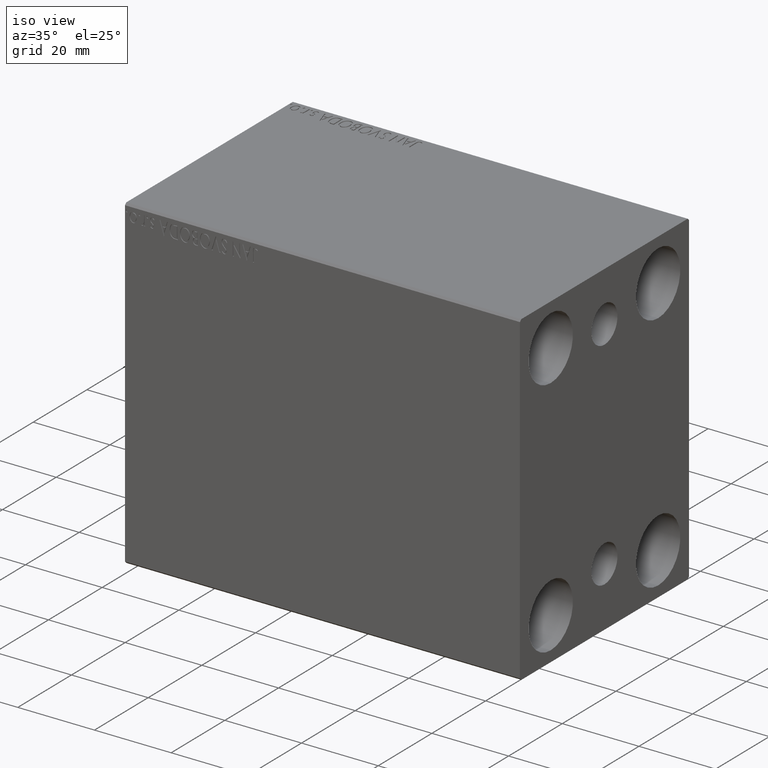
[diagram: clean part render]
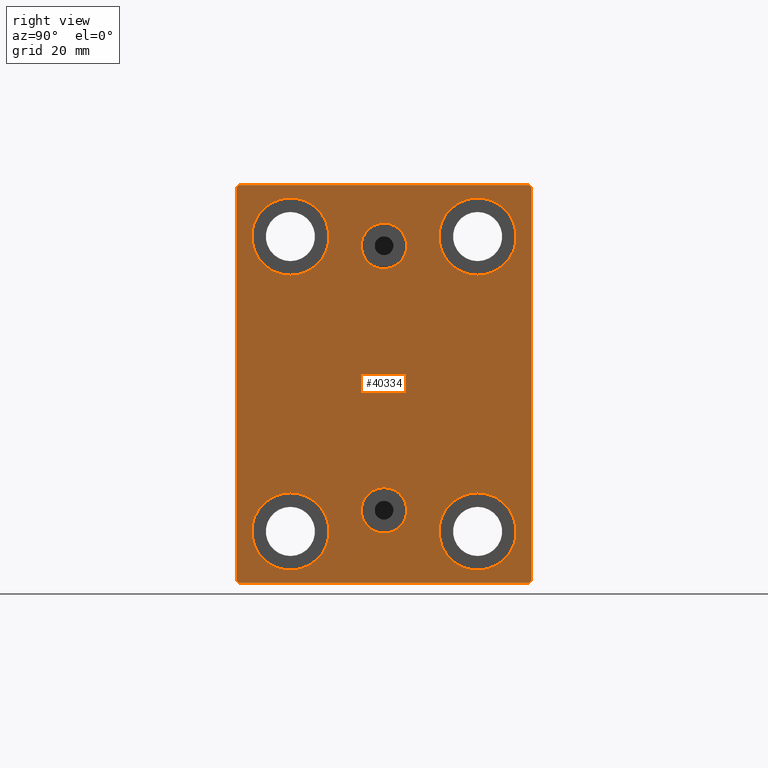
[diagram: tour spotlight — one face highlighted and labeled with its STEP entity id]
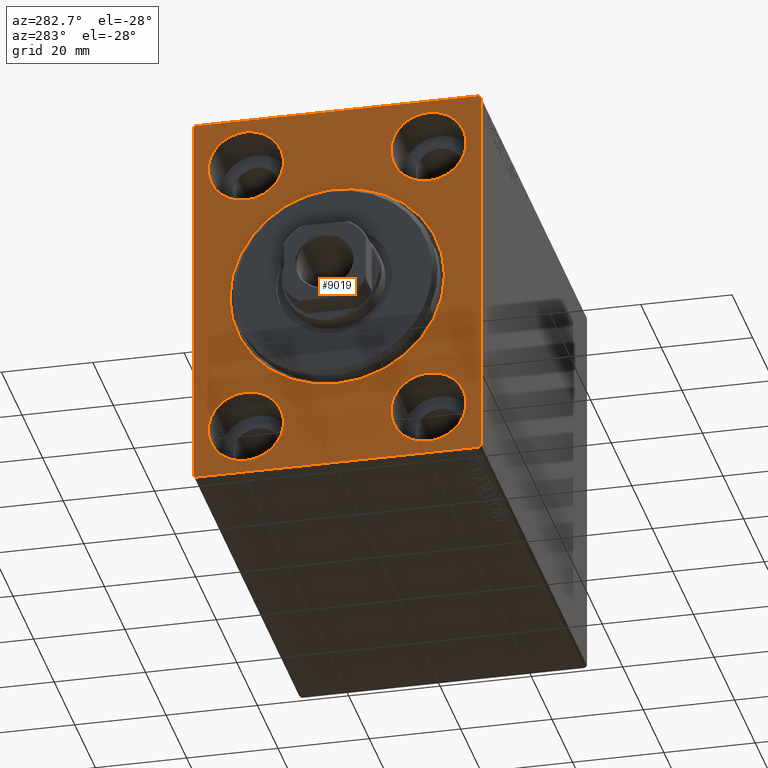
[diagram: tour spotlight — one face highlighted and labeled with its STEP entity id]
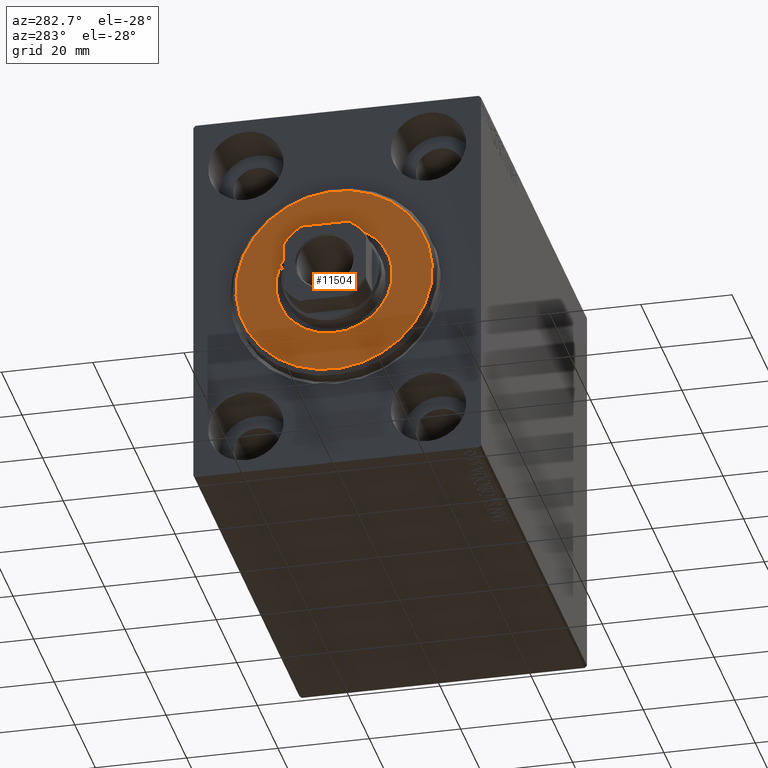
[diagram: tour spotlight — one face highlighted and labeled with its STEP entity id]
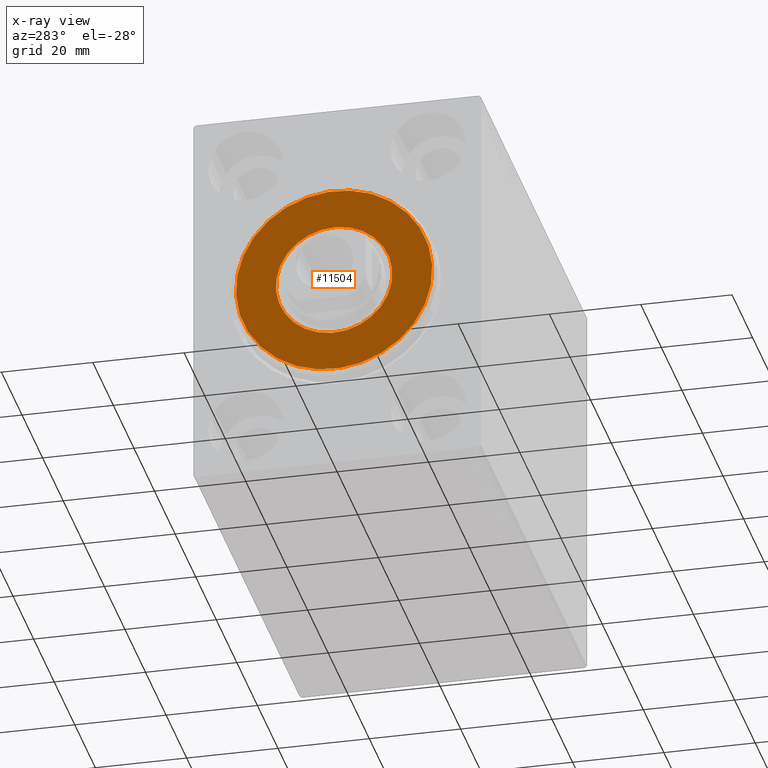
[diagram: x-ray of the same camera — body ghosted, this tour face saturated]
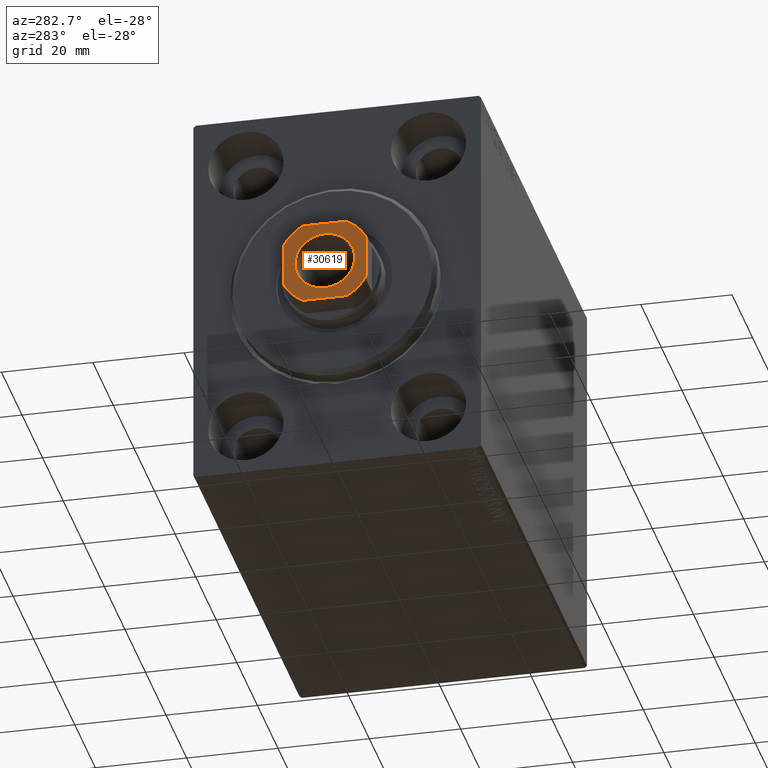
[diagram: tour spotlight — one face highlighted and labeled with its STEP entity id]
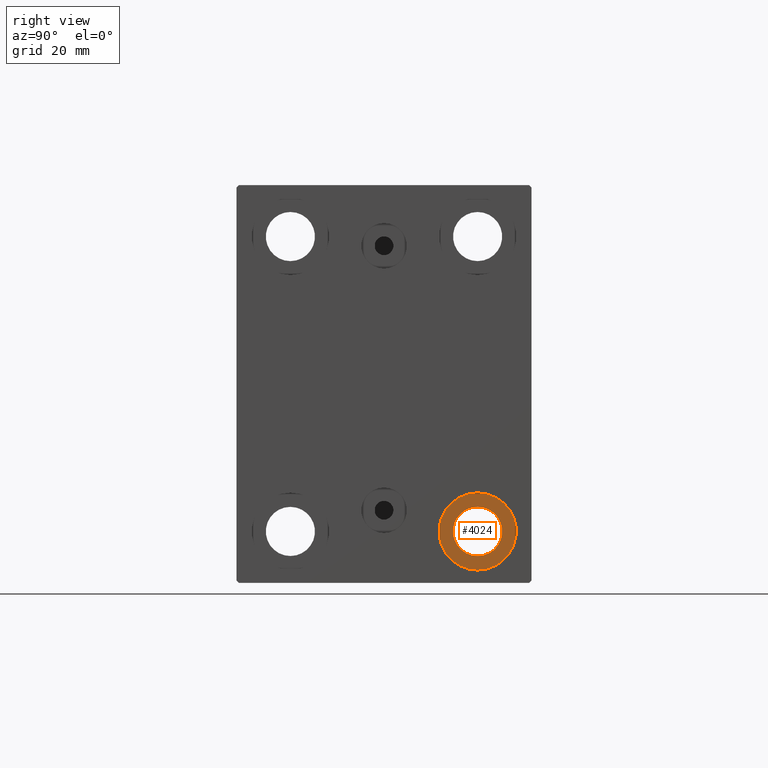
[diagram: tour spotlight — one face highlighted and labeled with its STEP entity id]
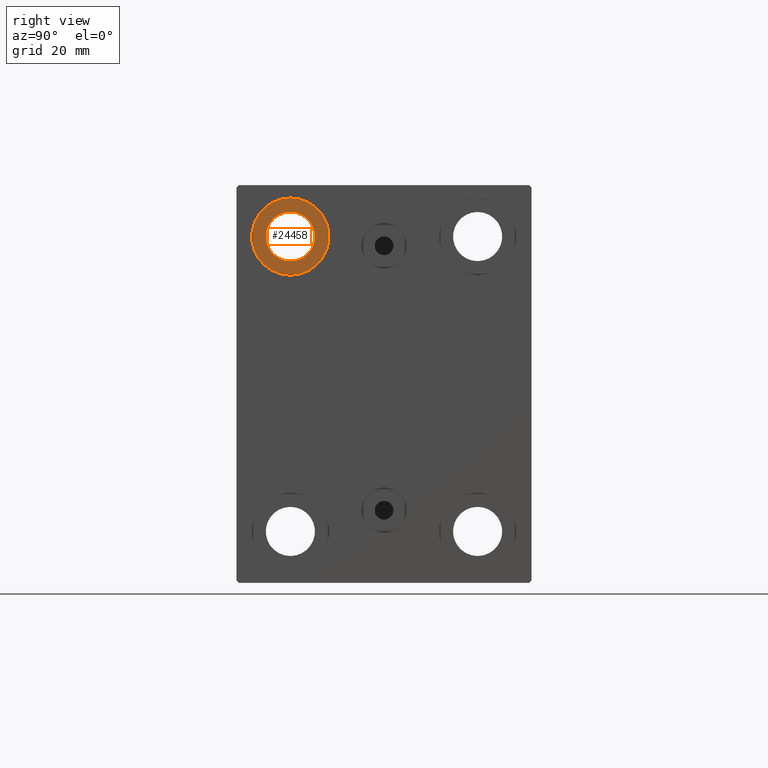
[diagram: tour spotlight — one face highlighted and labeled with its STEP entity id]
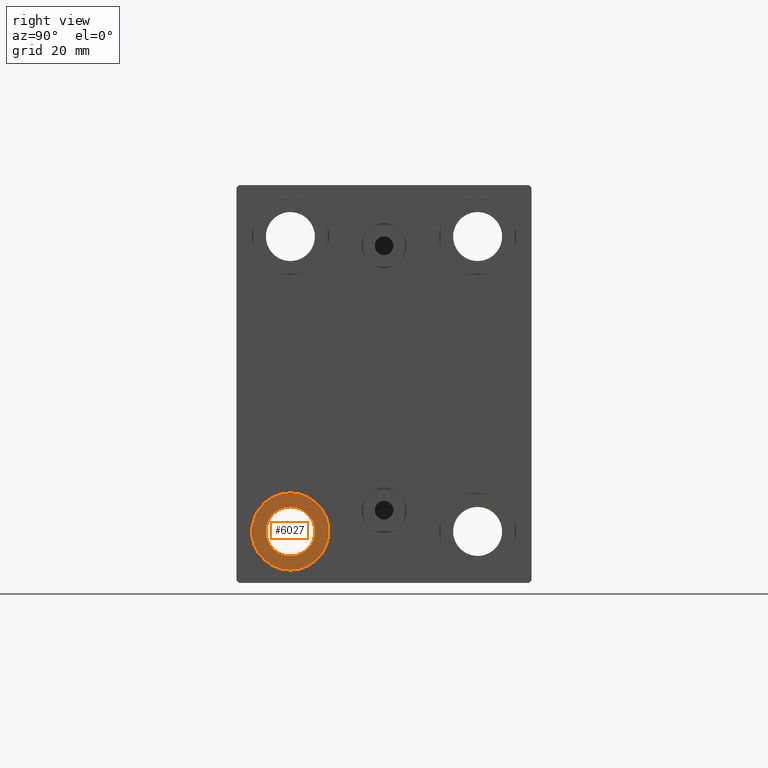
[diagram: tour spotlight — one face highlighted and labeled with its STEP entity id]
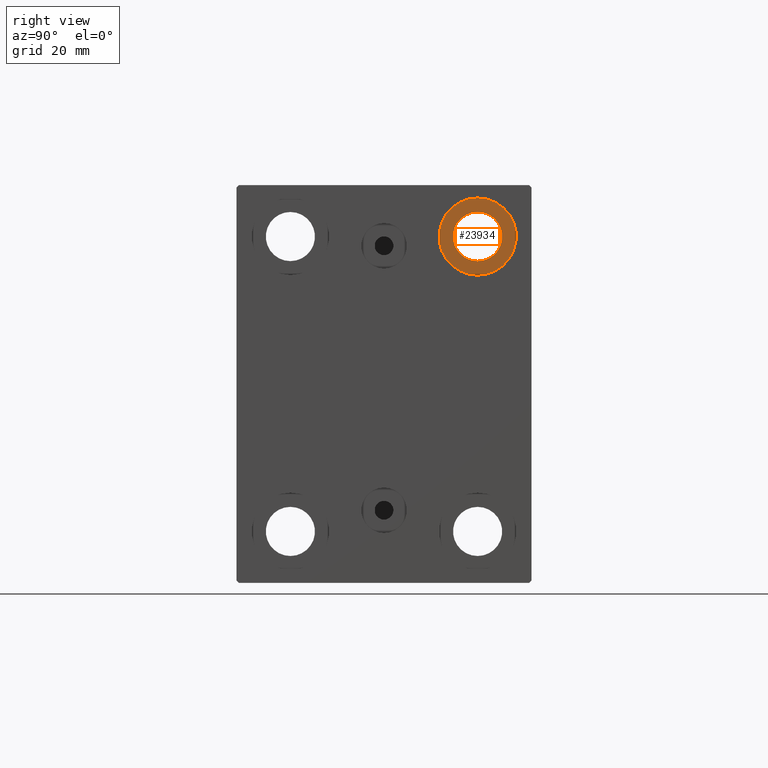
[diagram: tour spotlight — one face highlighted and labeled with its STEP entity id]
A machine part: a face-by-face anatomy tour. The part has 858 B-rep faces; the first image is the clean iso view, then the 8 largest visible faces are spotlighted one at a time (largest first), each with its STEP entity span.

Face 1 — right view, entity #40334. In plain terms, the highlighted planar face has unit normal (1, 0, 0).
Definition (entity closure, byte-faithful):
#128 = AXIS2_PLACEMENT_3D ( 'NONE', #21865, #35574, #18784 ) ;
#163 = CIRCLE ( 'NONE', #25560, 8.250000000000000000 ) ;
#246 = DIRECTION ( 'NONE',  ( -0.000000000000000000, 0.7071067811865474617, 0.7071067811865474617 ) ) ;
#266 = DIRECTION ( 'NONE',  ( -1.000000000000000000, -0.000000000000000000, -0.000000000000000000 ) ) ;
#373 = CARTESIAN_POINT ( 'NONE',  ( 103.0000000000000000, 0.000000000000000000, 0.000000000000000000 ) ) ;
#532 = AXIS2_PLACEMENT_3D ( 'NONE', #6628, #16793, #19462 ) ;
#555 = CARTESIAN_POINT ( 'NONE',  ( 103.0000000000000000, -31.50000000000000000, -42.50000000000000711 ) ) ;
#624 = EDGE_LOOP ( 'NONE', ( #29188, #14013 ) ) ;
#699 = DIRECTION ( 'NONE',  ( -1.000000000000000000, -0.000000000000000000, -0.000000000000000000 ) ) ;
#930 = CARTESIAN_POINT ( 'NONE',  ( 103.0000000000000000, 36.74999999999999289, 36.74999999999999289 ) ) ;
#1200 = CARTESIAN_POINT ( 'NONE',  ( 103.0000000000000000, -36.74999999999998579, 36.74999999999998579 ) ) ;
#1218 = VERTEX_POINT ( 'NONE', #34684 ) ;
#1365 = DIRECTION ( 'NONE',  ( -0.000000000000000000, 0.7071067811865474617, -0.7071067811865474617 ) ) ;
#1875 = EDGE_CURVE ( 'NONE', #17094, #26850, #31874, .T. ) ;
#1946 = DIRECTION ( 'NONE',  ( -1.000000000000000000, -0.000000000000000000, -0.000000000000000000 ) ) ;
#2359 = DIRECTION ( 'NONE',  ( 0.000000000000000000, 0.000000000000000000, 1.000000000000000000 ) ) ;
#2840 = EDGE_CURVE ( 'NONE', #1218, #8318, #21535, .T. ) ;
#2922 = EDGE_LOOP ( 'NONE', ( #8895, #22804 ) ) ;
#3085 = DIRECTION ( 'NONE',  ( 0.000000000000000000, 0.000000000000000000, 1.000000000000000000 ) ) ;
#3283 = EDGE_CURVE ( 'NONE', #8318, #17094, #18623, .T. ) ;
#3564 = LINE ( 'NONE', #20803, #6476 ) ;
#3578 = CIRCLE ( 'NONE', #28272, 8.250000000000000000 ) ;
#3584 = CARTESIAN_POINT ( 'NONE',  ( 103.0000000000000000, 19.99999999999999645, -31.49999999999999289 ) ) ;
#3854 = VECTOR ( 'NONE', #34576, 1000.000000000000114 ) ;
#4018 = VERTEX_POINT ( 'NONE', #43431 ) ;
#4093 = CARTESIAN_POINT ( 'NONE',  ( 103.0000000000000000, 3.901724702083465828E-15, -22.13999999999999346 ) ) ;
#4469 = LINE ( 'NONE', #930, #19172 ) ;
#4722 = CARTESIAN_POINT ( 'NONE',  ( 103.0000000000000000, 3.306546357697852550E-15, -31.85999999999998522 ) ) ;
#4743 = DIRECTION ( 'NONE',  ( 0.000000000000000000, 1.000000000000000000, 0.000000000000000000 ) ) ;
#5449 = CARTESIAN_POINT ( 'NONE',  ( 103.0000000000000000, 31.50000000000000000, 42.50000000000000711 ) ) ;
#5824 = CIRCLE ( 'NONE', #35470, 4.859999999999999432 ) ;
#6271 = VERTEX_POINT ( 'NONE', #4722 ) ;
#6280 = EDGE_CURVE ( 'NONE', #4018, #13360, #42112, .T. ) ;
#6461 = EDGE_CURVE ( 'NONE', #21991, #17119, #9631, .T. ) ;
#6476 = VECTOR ( 'NONE', #246, 1000.000000000000114 ) ;
#6552 = CARTESIAN_POINT ( 'NONE',  ( 103.0000000000000000, -31.50000000000000000, 41.99999999999997868 ) ) ;
#6628 = CARTESIAN_POINT ( 'NONE',  ( 103.0000000000000000, 3.306546357697852550E-15, -26.99999999999998934 ) ) ;
#7459 = FACE_BOUND ( 'NONE', #20602, .T. ) ;
#7579 = CIRCLE ( 'NONE', #29467, 4.859999999999995879 ) ;
#7602 = ORIENTED_EDGE ( 'NONE', *, *, #33748, .T. ) ;
#8257 = ORIENTED_EDGE ( 'NONE', *, *, #6280, .T. ) ;
#8318 = VERTEX_POINT ( 'NONE', #6552 ) ;
#8404 = VERTEX_POINT ( 'NONE', #18466 ) ;
#8553 = CARTESIAN_POINT ( 'NONE',  ( 103.0000000000000000, 30.99999999999998579, 42.50000000000000711 ) ) ;
#8682 = ORIENTED_EDGE ( 'NONE', *, *, #14053, .F. ) ;
#8895 = ORIENTED_EDGE ( 'NONE', *, *, #6461, .T. ) ;
#9112 = VERTEX_POINT ( 'NONE', #23635 ) ;
#9534 = VECTOR ( 'NONE', #21714, 1000.000000000000000 ) ;
#9631 = CIRCLE ( 'NONE', #37139, 8.250000000000000000 ) ;
#9647 = VECTOR ( 'NONE', #36297, 1000.000000000000000 ) ;
#9680 = CIRCLE ( 'NONE', #18173, 8.249999999999992895 ) ;
#10509 = EDGE_CURVE ( 'NONE', #37663, #1218, #21802, .T. ) ;
#11333 = CARTESIAN_POINT ( 'NONE',  ( 103.0000000000000000, -3.571693674697836683E-15, 24.64000000000001123 ) ) ;
#11407 = ORIENTED_EDGE ( 'NONE', *, *, #34675, .T. ) ;
#11642 = VECTOR ( 'NONE', #1365, 1000.000000000000114 ) ;
#12088 = DIRECTION ( 'NONE',  ( -1.000000000000000000, -0.000000000000000000, -0.000000000000000000 ) ) ;
#12860 = CIRCLE ( 'NONE', #19913, 8.249999999999992895 ) ;
#12880 = LINE ( 'NONE', #19082, #9647 ) ;
#13316 = DIRECTION ( 'NONE',  ( 0.000000000000000000, 0.000000000000000000, 1.000000000000000000 ) ) ;
#13360 = VERTEX_POINT ( 'NONE', #18193 ) ;
#13382 = EDGE_CURVE ( 'NONE', #32177, #30527, #12880, .T. ) ;
#13493 = CIRCLE ( 'NONE', #31155, 4.859999999999999432 ) ;
#13871 = FACE_BOUND ( 'NONE', #16728, .T. ) ;
#13928 = EDGE_CURVE ( 'NONE', #6271, #40684, #30130, .T. ) ;
#13960 = ORIENTED_EDGE ( 'NONE', *, *, #34361, .T. ) ;
#14013 = ORIENTED_EDGE ( 'NONE', *, *, #32191, .F. ) ;
#14053 = EDGE_CURVE ( 'NONE', #40684, #6271, #7579, .T. ) ;
#14265 = LINE ( 'NONE', #555, #16243 ) ;
#14543 = VECTOR ( 'NONE', #28419, 1000.000000000000000 ) ;
#14553 = EDGE_CURVE ( 'NONE', #8404, #43765, #9680, .T. ) ;
#14597 = CARTESIAN_POINT ( 'NONE',  ( 103.0000000000000000, -19.99999999999999645, 23.25000000000000355 ) ) ;
#15552 = CARTESIAN_POINT ( 'NONE',  ( 103.0000000000000000, -20.00000000000000355, -31.49999999999999289 ) ) ;
#15672 = CIRCLE ( 'NONE', #128, 8.249999999999992895 ) ;
#16202 = DIRECTION ( 'NONE',  ( -1.000000000000000000, -0.000000000000000000, -0.000000000000000000 ) ) ;
#16243 = VECTOR ( 'NONE', #4743, 1000.000000000000000 ) ;
#16728 = EDGE_LOOP ( 'NONE', ( #16890, #8682 ) ) ;
#16793 = DIRECTION ( 'NONE',  ( 1.000000000000000000, 0.000000000000000000, -0.000000000000000000 ) ) ;
#16890 = ORIENTED_EDGE ( 'NONE', *, *, #13928, .F. ) ;
#17001 = EDGE_CURVE ( 'NONE', #9112, #28410, #23154, .T. ) ;
#17071 = CARTESIAN_POINT ( 'NONE',  ( 103.0000000000000000, 20.00000000000000355, 31.50000000000000000 ) ) ;
#17094 = VERTEX_POINT ( 'NONE', #26241 ) ;
#17119 = VERTEX_POINT ( 'NONE', #26898 ) ;
#17614 = FACE_BOUND ( 'NONE', #23043, .T. ) ;
#18173 = AXIS2_PLACEMENT_3D ( 'NONE', #17071, #266, #13316 ) ;
#18193 = CARTESIAN_POINT ( 'NONE',  ( 103.0000000000000000, -20.00000000000000355, -23.24999999999999289 ) ) ;
#18466 = CARTESIAN_POINT ( 'NONE',  ( 103.0000000000000000, 20.00000000000000355, 23.25000000000000355 ) ) ;
#18623 = LINE ( 'NONE', #29214, #9534 ) ;
#18784 = DIRECTION ( 'NONE',  ( 0.000000000000000000, 0.000000000000000000, 1.000000000000000000 ) ) ;
#19082 = CARTESIAN_POINT ( 'NONE',  ( 103.0000000000000000, 31.50000000000001421, -42.50000000000000711 ) ) ;
#19172 = VECTOR ( 'NONE', #28549, 1000.000000000000114 ) ;
#19193 = CARTESIAN_POINT ( 'NONE',  ( 103.0000000000000000, -31.00000000000000000, -42.50000000000000711 ) ) ;
#19462 = DIRECTION ( 'NONE',  ( 0.000000000000000000, 0.000000000000000000, 1.000000000000000000 ) ) ;
#19913 = AXIS2_PLACEMENT_3D ( 'NONE', #32852, #12088, #2359 ) ;
#19991 = ORIENTED_EDGE ( 'NONE', *, *, #2840, .T. ) ;
#20265 = DIRECTION ( 'NONE',  ( 0.000000000000000000, 0.000000000000000000, 1.000000000000000000 ) ) ;
#20602 = EDGE_LOOP ( 'NONE', ( #8257, #22443 ) ) ;
#20726 = CARTESIAN_POINT ( 'NONE',  ( 103.0000000000000000, 31.00000000000001421, -42.50000000000000711 ) ) ;
#20803 = CARTESIAN_POINT ( 'NONE',  ( 103.0000000000000000, 36.75000000000001421, -36.75000000000001421 ) ) ;
#21009 = ORIENTED_EDGE ( 'NONE', *, *, #22232, .T. ) ;
#21255 = DIRECTION ( 'NONE',  ( 0.000000000000000000, 0.000000000000000000, 1.000000000000000000 ) ) ;
#21519 = DIRECTION ( 'NONE',  ( -1.000000000000000000, -0.000000000000000000, -0.000000000000000000 ) ) ;
#21535 = LINE ( 'NONE', #1200, #3854 ) ;
#21714 = DIRECTION ( 'NONE',  ( 0.000000000000000000, 0.000000000000000000, -1.000000000000000000 ) ) ;
#21802 = LINE ( 'NONE', #5449, #14543 ) ;
#21865 = CARTESIAN_POINT ( 'NONE',  ( 103.0000000000000000, -19.99999999999999645, 31.50000000000000000 ) ) ;
#21957 = DIRECTION ( 'NONE',  ( 0.000000000000000000, 0.000000000000000000, 1.000000000000000000 ) ) ;
#21991 = VERTEX_POINT ( 'NONE', #32854 ) ;
#22232 = EDGE_CURVE ( 'NONE', #26850, #33356, #14265, .T. ) ;
#22443 = ORIENTED_EDGE ( 'NONE', *, *, #39478, .T. ) ;
#22804 = ORIENTED_EDGE ( 'NONE', *, *, #30725, .T. ) ;
#23043 = EDGE_LOOP ( 'NONE', ( #37525, #13960 ) ) ;
#23154 = CIRCLE ( 'NONE', #30227, 8.249999999999992895 ) ;
#23227 = ORIENTED_EDGE ( 'NONE', *, *, #17001, .T. ) ;
#23635 = CARTESIAN_POINT ( 'NONE',  ( 103.0000000000000000, -19.99999999999999645, 39.74999999999999289 ) ) ;
#23754 = CARTESIAN_POINT ( 'NONE',  ( 103.0000000000000000, 31.50000000000000000, 41.99999999999999289 ) ) ;
#23807 = DIRECTION ( 'NONE',  ( 0.000000000000000000, 0.000000000000000000, -1.000000000000000000 ) ) ;
#24026 = FACE_BOUND ( 'NONE', #2922, .T. ) ;
#24240 = DIRECTION ( 'NONE',  ( -1.000000000000000000, -0.000000000000000000, -0.000000000000000000 ) ) ;
#25560 = AXIS2_PLACEMENT_3D ( 'NONE', #30655, #24240, #20265 ) ;
#25597 = AXIS2_PLACEMENT_3D ( 'NONE', #373, #37505, #23807 ) ;
#25931 = DIRECTION ( 'NONE',  ( 0.000000000000000000, 0.000000000000000000, 1.000000000000000000 ) ) ;
#26241 = CARTESIAN_POINT ( 'NONE',  ( 103.0000000000000000, -31.50000000000000000, -42.00000000000000711 ) ) ;
#26850 = VERTEX_POINT ( 'NONE', #19193 ) ;
#26882 = EDGE_LOOP ( 'NONE', ( #33782, #19991, #40499, #32187, #21009, #27925, #31960, #7602 ) ) ;
#26898 = CARTESIAN_POINT ( 'NONE',  ( 103.0000000000000000, 19.99999999999999645, -23.24999999999999289 ) ) ;
#27817 = CARTESIAN_POINT ( 'NONE',  ( 103.0000000000000000, -19.99999999999999645, 31.50000000000000000 ) ) ;
#27925 = ORIENTED_EDGE ( 'NONE', *, *, #38051, .T. ) ;
#28272 = AXIS2_PLACEMENT_3D ( 'NONE', #29026, #16202, #25931 ) ;
#28410 = VERTEX_POINT ( 'NONE', #14597 ) ;
#28419 = DIRECTION ( 'NONE',  ( 0.000000000000000000, -1.000000000000000000, -2.202823461557850341E-16 ) ) ;
#28549 = DIRECTION ( 'NONE',  ( -0.000000000000000000, -0.7071067811865474617, 0.7071067811865474617 ) ) ;
#28905 = VERTEX_POINT ( 'NONE', #41898 ) ;
#28988 = CARTESIAN_POINT ( 'NONE',  ( 103.0000000000000000, -36.75000000000000711, -36.75000000000000711 ) ) ;
#29026 = CARTESIAN_POINT ( 'NONE',  ( 103.0000000000000000, 19.99999999999999645, -31.49999999999999289 ) ) ;
#29188 = ORIENTED_EDGE ( 'NONE', *, *, #39425, .F. ) ;
#29214 = CARTESIAN_POINT ( 'NONE',  ( 103.0000000000000000, -31.50000000000000000, 42.49999999999999289 ) ) ;
#29467 = AXIS2_PLACEMENT_3D ( 'NONE', #30273, #43769, #3085 ) ;
#29610 = EDGE_LOOP ( 'NONE', ( #11407, #23227 ) ) ;
#30013 = CARTESIAN_POINT ( 'NONE',  ( 103.0000000000000000, -3.571693674697836683E-15, 29.50000000000001066 ) ) ;
#30130 = CIRCLE ( 'NONE', #532, 4.859999999999995879 ) ;
#30227 = AXIS2_PLACEMENT_3D ( 'NONE', #27817, #1946, #38423 ) ;
#30273 = CARTESIAN_POINT ( 'NONE',  ( 103.0000000000000000, 3.306546357697852550E-15, -26.99999999999998934 ) ) ;
#30527 = VERTEX_POINT ( 'NONE', #23754 ) ;
#30655 = CARTESIAN_POINT ( 'NONE',  ( 103.0000000000000000, -20.00000000000000355, -31.49999999999999289 ) ) ;
#30678 = DIRECTION ( 'NONE',  ( 1.000000000000000000, 0.000000000000000000, 0.000000000000000000 ) ) ;
#30725 = EDGE_CURVE ( 'NONE', #17119, #21991, #3578, .T. ) ;
#30883 = FACE_BOUND ( 'NONE', #624, .T. ) ;
#31155 = AXIS2_PLACEMENT_3D ( 'NONE', #30013, #30678, #36640 ) ;
#31874 = LINE ( 'NONE', #28988, #11642 ) ;
#31960 = ORIENTED_EDGE ( 'NONE', *, *, #13382, .T. ) ;
#32001 = CARTESIAN_POINT ( 'NONE',  ( 103.0000000000000000, 20.00000000000000355, 39.74999999999999289 ) ) ;
#32177 = VERTEX_POINT ( 'NONE', #33327 ) ;
#32187 = ORIENTED_EDGE ( 'NONE', *, *, #1875, .T. ) ;
#32191 = EDGE_CURVE ( 'NONE', #28905, #43488, #13493, .T. ) ;
#32852 = CARTESIAN_POINT ( 'NONE',  ( 103.0000000000000000, 20.00000000000000355, 31.50000000000000000 ) ) ;
#32854 = CARTESIAN_POINT ( 'NONE',  ( 103.0000000000000000, 19.99999999999999645, -39.74999999999999289 ) ) ;
#33327 = CARTESIAN_POINT ( 'NONE',  ( 103.0000000000000000, 31.50000000000001421, -42.00000000000000711 ) ) ;
#33356 = VERTEX_POINT ( 'NONE', #20726 ) ;
#33748 = EDGE_CURVE ( 'NONE', #30527, #37663, #4469, .T. ) ;
#33782 = ORIENTED_EDGE ( 'NONE', *, *, #10509, .T. ) ;
#34179 = CARTESIAN_POINT ( 'NONE',  ( 103.0000000000000000, -3.571693674697836683E-15, 29.50000000000001066 ) ) ;
#34361 = EDGE_CURVE ( 'NONE', #43765, #8404, #12860, .T. ) ;
#34576 = DIRECTION ( 'NONE',  ( 0.000000000000000000, -0.7071067811865474617, -0.7071067811865474617 ) ) ;
#34675 = EDGE_CURVE ( 'NONE', #28410, #9112, #15672, .T. ) ;
#34684 = CARTESIAN_POINT ( 'NONE',  ( 103.0000000000000000, -30.99999999999998579, 42.49999999999999289 ) ) ;
#35470 = AXIS2_PLACEMENT_3D ( 'NONE', #34179, #41270, #41053 ) ;
#35574 = DIRECTION ( 'NONE',  ( -1.000000000000000000, -0.000000000000000000, -0.000000000000000000 ) ) ;
#36297 = DIRECTION ( 'NONE',  ( 0.000000000000000000, -1.632680918566406300E-16, 1.000000000000000000 ) ) ;
#36434 = AXIS2_PLACEMENT_3D ( 'NONE', #15552, #21519, #21957 ) ;
#36640 = DIRECTION ( 'NONE',  ( 0.000000000000000000, 0.000000000000000000, -1.000000000000000000 ) ) ;
#37139 = AXIS2_PLACEMENT_3D ( 'NONE', #3584, #699, #21255 ) ;
#37505 = DIRECTION ( 'NONE',  ( 1.000000000000000000, 0.000000000000000000, 0.000000000000000000 ) ) ;
#37525 = ORIENTED_EDGE ( 'NONE', *, *, #14553, .T. ) ;
#37663 = VERTEX_POINT ( 'NONE', #8553 ) ;
#37727 = PLANE ( 'NONE',  #25597 ) ;
#38051 = EDGE_CURVE ( 'NONE', #33356, #32177, #3564, .T. ) ;
#38423 = DIRECTION ( 'NONE',  ( 0.000000000000000000, 0.000000000000000000, 1.000000000000000000 ) ) ;
#39425 = EDGE_CURVE ( 'NONE', #43488, #28905, #5824, .T. ) ;
#39478 = EDGE_CURVE ( 'NONE', #13360, #4018, #163, .T. ) ;
#40334 = ADVANCED_FACE ( 'NONE', ( #30883, #13871, #24026, #40845, #17614, #7459, #40626 ), #37727, .T. ) ;
#40499 = ORIENTED_EDGE ( 'NONE', *, *, #3283, .T. ) ;
#40626 = FACE_OUTER_BOUND ( 'NONE', #26882, .T. ) ;
#40684 = VERTEX_POINT ( 'NONE', #4093 ) ;
#40845 = FACE_BOUND ( 'NONE', #29610, .T. ) ;
#41053 = DIRECTION ( 'NONE',  ( 0.000000000000000000, 0.000000000000000000, -1.000000000000000000 ) ) ;
#41270 = DIRECTION ( 'NONE',  ( 1.000000000000000000, 0.000000000000000000, 0.000000000000000000 ) ) ;
#41898 = CARTESIAN_POINT ( 'NONE',  ( 103.0000000000000000, -2.976515330312223011E-15, 34.36000000000000654 ) ) ;
#42112 = CIRCLE ( 'NONE', #36434, 8.250000000000000000 ) ;
#43431 = CARTESIAN_POINT ( 'NONE',  ( 103.0000000000000000, -20.00000000000000355, -39.74999999999999289 ) ) ;
#43488 = VERTEX_POINT ( 'NONE', #11333 ) ;
#43765 = VERTEX_POINT ( 'NONE', #32001 ) ;
#43769 = DIRECTION ( 'NONE',  ( 1.000000000000000000, 0.000000000000000000, -0.000000000000000000 ) ) ;

Face 2 — auxiliary view, entity #9019. In plain terms, the highlighted planar face has unit normal (1, 0, 0).
Definition (entity closure, byte-faithful):
#65 = VECTOR ( 'NONE', #25231, 1000.000000000000000 ) ;
#102 = CARTESIAN_POINT ( 'NONE',  ( 0.000000000000000000, -20.00000000000000355, -23.24999999999999289 ) ) ;
#941 = ORIENTED_EDGE ( 'NONE', *, *, #20002, .F. ) ;
#1093 = AXIS2_PLACEMENT_3D ( 'NONE', #3796, #34286, #14185 ) ;
#1386 = DIRECTION ( 'NONE',  ( 0.000000000000000000, 1.000000000000000000, 0.000000000000000000 ) ) ;
#1620 = AXIS2_PLACEMENT_3D ( 'NONE', #8386, #12585, #22739 ) ;
#1837 = CIRCLE ( 'NONE', #26530, 8.250000000000000000 ) ;
#2172 = ORIENTED_EDGE ( 'NONE', *, *, #20247, .F. ) ;
#2256 = VECTOR ( 'NONE', #5066, 1000.000000000000000 ) ;
#2296 = VECTOR ( 'NONE', #37291, 1000.000000000000114 ) ;
#2500 = CIRCLE ( 'NONE', #10948, 8.250000000000000000 ) ;
#2654 = VERTEX_POINT ( 'NONE', #15623 ) ;
#2732 = EDGE_CURVE ( 'NONE', #3199, #25811, #3439, .T. ) ;
#2928 = EDGE_LOOP ( 'NONE', ( #30546, #3133 ) ) ;
#3133 = ORIENTED_EDGE ( 'NONE', *, *, #17356, .T. ) ;
#3199 = VERTEX_POINT ( 'NONE', #24165 ) ;
#3439 = LINE ( 'NONE', #20236, #40593 ) ;
#3492 = CIRCLE ( 'NONE', #26084, 8.249999999999992895 ) ;
#3527 = EDGE_CURVE ( 'NONE', #25511, #18236, #2500, .T. ) ;
#3796 = CARTESIAN_POINT ( 'NONE',  ( 0.000000000000000000, 0.000000000000000000, 0.000000000000000000 ) ) ;
#4530 = ORIENTED_EDGE ( 'NONE', *, *, #2732, .T. ) ;
#4597 = ORIENTED_EDGE ( 'NONE', *, *, #25443, .F. ) ;
#4659 = FACE_BOUND ( 'NONE', #18454, .T. ) ;
#4896 = LINE ( 'NONE', #18384, #65 ) ;
#5066 = DIRECTION ( 'NONE',  ( 0.000000000000000000, 0.000000000000000000, -1.000000000000000000 ) ) ;
#6678 = VERTEX_POINT ( 'NONE', #28418 ) ;
#6974 = EDGE_CURVE ( 'NONE', #34148, #7710, #1837, .T. ) ;
#7651 = ORIENTED_EDGE ( 'NONE', *, *, #36541, .T. ) ;
#7710 = VERTEX_POINT ( 'NONE', #22635 ) ;
#8166 = LINE ( 'NONE', #28711, #2256 ) ;
#8386 = CARTESIAN_POINT ( 'NONE',  ( 0.000000000000000000, 20.00000000000000355, 31.50000000000000000 ) ) ;
#9019 = ADVANCED_FACE ( 'NONE', ( #10652, #4659, #24774, #18146, #37384, #20815 ), #34063, .F. ) ;
#9186 = DIRECTION ( 'NONE',  ( 0.000000000000000000, 0.000000000000000000, -1.000000000000000000 ) ) ;
#9918 = AXIS2_PLACEMENT_3D ( 'NONE', #25327, #35499, #33045 ) ;
#10652 = FACE_BOUND ( 'NONE', #2928, .T. ) ;
#10948 = AXIS2_PLACEMENT_3D ( 'NONE', #41791, #28501, #18791 ) ;
#11493 = VECTOR ( 'NONE', #23601, 1000.000000000000114 ) ;
#11729 = CARTESIAN_POINT ( 'NONE',  ( 0.000000000000000000, -20.00000000000000355, -31.49999999999999289 ) ) ;
#11947 = DIRECTION ( 'NONE',  ( 0.000000000000000000, 0.000000000000000000, 1.000000000000000000 ) ) ;
#11959 = AXIS2_PLACEMENT_3D ( 'NONE', #41423, #24604, #38083 ) ;
#12271 = CARTESIAN_POINT ( 'NONE',  ( 0.000000000000000000, 19.99999999999999645, -31.49999999999999289 ) ) ;
#12307 = EDGE_CURVE ( 'NONE', #3199, #19614, #36498, .T. ) ;
#12487 = ORIENTED_EDGE ( 'NONE', *, *, #31682, .F. ) ;
#12585 = DIRECTION ( 'NONE',  ( -1.000000000000000000, 0.000000000000000000, 0.000000000000000000 ) ) ;
#13432 = CARTESIAN_POINT ( 'NONE',  ( 0.000000000000000000, -31.50000000000000000, 41.99999999999997868 ) ) ;
#13535 = DIRECTION ( 'NONE',  ( -1.000000000000000000, 0.000000000000000000, 0.000000000000000000 ) ) ;
#13697 = ORIENTED_EDGE ( 'NONE', *, *, #3527, .F. ) ;
#13794 = CARTESIAN_POINT ( 'NONE',  ( 0.000000000000000000, 0.000000000000000000, 0.000000000000000000 ) ) ;
#14185 = DIRECTION ( 'NONE',  ( 0.000000000000000000, 0.000000000000000000, -1.000000000000000000 ) ) ;
#15152 = VERTEX_POINT ( 'NONE', #13432 ) ;
#15623 = CARTESIAN_POINT ( 'NONE',  ( 0.000000000000000000, -31.00000000000000000, -42.50000000000000711 ) ) ;
#15876 = VERTEX_POINT ( 'NONE', #25167 ) ;
#16109 = LINE ( 'NONE', #25613, #23448 ) ;
#16391 = DIRECTION ( 'NONE',  ( 0.000000000000000000, -1.632680918566406300E-16, 1.000000000000000000 ) ) ;
#16449 = DIRECTION ( 'NONE',  ( 1.000000000000000000, 0.000000000000000000, 0.000000000000000000 ) ) ;
#16817 = CIRCLE ( 'NONE', #37981, 23.50000000000001776 ) ;
#16843 = CARTESIAN_POINT ( 'NONE',  ( 0.000000000000000000, -19.99999999999999645, 31.50000000000000000 ) ) ;
#17356 = EDGE_CURVE ( 'NONE', #15876, #29988, #16817, .T. ) ;
#17564 = DIRECTION ( 'NONE',  ( 0.000000000000000000, 0.000000000000000000, 1.000000000000000000 ) ) ;
#17976 = LINE ( 'NONE', #24175, #35289 ) ;
#18146 = FACE_BOUND ( 'NONE', #36100, .T. ) ;
#18236 = VERTEX_POINT ( 'NONE', #102 ) ;
#18384 = CARTESIAN_POINT ( 'NONE',  ( 0.000000000000000000, 31.50000000000000000, 42.50000000000000711 ) ) ;
#18454 = EDGE_LOOP ( 'NONE', ( #38525, #941 ) ) ;
#18791 = DIRECTION ( 'NONE',  ( 0.000000000000000000, 0.000000000000000000, 1.000000000000000000 ) ) ;
#19141 = CARTESIAN_POINT ( 'NONE',  ( 0.000000000000000000, 0.000000000000000000, 0.000000000000000000 ) ) ;
#19614 = VERTEX_POINT ( 'NONE', #32276 ) ;
#20002 = EDGE_CURVE ( 'NONE', #7710, #34148, #35936, .T. ) ;
#20025 = ORIENTED_EDGE ( 'NONE', *, *, #30427, .F. ) ;
#20150 = EDGE_CURVE ( 'NONE', #29988, #15876, #23940, .T. ) ;
#20236 = CARTESIAN_POINT ( 'NONE',  ( 0.000000000000000000, 31.50000000000001421, -42.00000000000000711 ) ) ;
#20247 = EDGE_CURVE ( 'NONE', #20458, #30805, #25353, .T. ) ;
#20443 = AXIS2_PLACEMENT_3D ( 'NONE', #11729, #25204, #11947 ) ;
#20458 = VERTEX_POINT ( 'NONE', #20586 ) ;
#20486 = ORIENTED_EDGE ( 'NONE', *, *, #20647, .F. ) ;
#20586 = CARTESIAN_POINT ( 'NONE',  ( 0.000000000000000000, -19.99999999999999645, 39.74999999999999289 ) ) ;
#20647 = EDGE_CURVE ( 'NONE', #18236, #25511, #23976, .T. ) ;
#20815 = FACE_OUTER_BOUND ( 'NONE', #22423, .T. ) ;
#21423 = EDGE_CURVE ( 'NONE', #30805, #20458, #3492, .T. ) ;
#22114 = ORIENTED_EDGE ( 'NONE', *, *, #34017, .F. ) ;
#22423 = EDGE_LOOP ( 'NONE', ( #22114, #7651, #12487, #37714, #40663, #4530, #4597, #30638 ) ) ;
#22635 = CARTESIAN_POINT ( 'NONE',  ( 0.000000000000000000, 19.99999999999999645, -39.74999999999999289 ) ) ;
#22670 = DIRECTION ( 'NONE',  ( 1.000000000000000000, 0.000000000000000000, 0.000000000000000000 ) ) ;
#22739 = DIRECTION ( 'NONE',  ( 0.000000000000000000, 0.000000000000000000, 1.000000000000000000 ) ) ;
#23448 = VECTOR ( 'NONE', #39119, 1000.000000000000114 ) ;
#23453 = CARTESIAN_POINT ( 'NONE',  ( 0.000000000000000000, 31.50000000000001421, -42.50000000000000711 ) ) ;
#23601 = DIRECTION ( 'NONE',  ( -0.000000000000000000, 0.7071067811865474617, 0.7071067811865474617 ) ) ;
#23800 = VERTEX_POINT ( 'NONE', #33938 ) ;
#23940 = CIRCLE ( 'NONE', #38043, 23.50000000000001776 ) ;
#23976 = CIRCLE ( 'NONE', #20443, 8.250000000000000000 ) ;
#24062 = ORIENTED_EDGE ( 'NONE', *, *, #21423, .F. ) ;
#24165 = CARTESIAN_POINT ( 'NONE',  ( 0.000000000000000000, 31.50000000000001421, -42.00000000000000711 ) ) ;
#24175 = CARTESIAN_POINT ( 'NONE',  ( 0.000000000000000000, -31.50000000000000000, -42.50000000000000711 ) ) ;
#24411 = CARTESIAN_POINT ( 'NONE',  ( 0.000000000000000000, 19.99999999999999645, -31.49999999999999289 ) ) ;
#24604 = DIRECTION ( 'NONE',  ( -1.000000000000000000, 0.000000000000000000, 0.000000000000000000 ) ) ;
#24774 = FACE_BOUND ( 'NONE', #35252, .T. ) ;
#25167 = CARTESIAN_POINT ( 'NONE',  ( 0.000000000000000000, 2.877919977996282293E-15, -23.50000000000001776 ) ) ;
#25204 = DIRECTION ( 'NONE',  ( -1.000000000000000000, 0.000000000000000000, 0.000000000000000000 ) ) ;
#25231 = DIRECTION ( 'NONE',  ( 0.000000000000000000, -1.000000000000000000, -2.202823461557850341E-16 ) ) ;
#25327 = CARTESIAN_POINT ( 'NONE',  ( 0.000000000000000000, 20.00000000000000355, 31.50000000000000000 ) ) ;
#25353 = CIRCLE ( 'NONE', #11959, 8.249999999999992895 ) ;
#25443 = EDGE_CURVE ( 'NONE', #2654, #25811, #17976, .T. ) ;
#25511 = VERTEX_POINT ( 'NONE', #25692 ) ;
#25613 = CARTESIAN_POINT ( 'NONE',  ( 0.000000000000000000, -31.00000000000000000, -42.50000000000000711 ) ) ;
#25692 = CARTESIAN_POINT ( 'NONE',  ( 0.000000000000000000, -20.00000000000000355, -39.74999999999999289 ) ) ;
#25811 = VERTEX_POINT ( 'NONE', #35813 ) ;
#25949 = ORIENTED_EDGE ( 'NONE', *, *, #37169, .F. ) ;
#26084 = AXIS2_PLACEMENT_3D ( 'NONE', #16843, #13535, #27009 ) ;
#26210 = CARTESIAN_POINT ( 'NONE',  ( 0.000000000000000000, 20.00000000000000355, 23.25000000000000355 ) ) ;
#26303 = VERTEX_POINT ( 'NONE', #31084 ) ;
#26530 = AXIS2_PLACEMENT_3D ( 'NONE', #24411, #34132, #17564 ) ;
#26794 = CARTESIAN_POINT ( 'NONE',  ( 0.000000000000000000, -19.99999999999999645, 23.25000000000000355 ) ) ;
#27009 = DIRECTION ( 'NONE',  ( 0.000000000000000000, 0.000000000000000000, 1.000000000000000000 ) ) ;
#28418 = CARTESIAN_POINT ( 'NONE',  ( 0.000000000000000000, -31.50000000000000000, -42.00000000000000711 ) ) ;
#28501 = DIRECTION ( 'NONE',  ( -1.000000000000000000, 0.000000000000000000, 0.000000000000000000 ) ) ;
#28664 = VECTOR ( 'NONE', #16391, 1000.000000000000000 ) ;
#28711 = CARTESIAN_POINT ( 'NONE',  ( 0.000000000000000000, -31.50000000000000000, 42.49999999999999289 ) ) ;
#29795 = CARTESIAN_POINT ( 'NONE',  ( 0.000000000000000000, -31.50000000000000000, 41.99999999999997868 ) ) ;
#29988 = VERTEX_POINT ( 'NONE', #32779 ) ;
#30427 = EDGE_CURVE ( 'NONE', #33891, #37755, #41709, .T. ) ;
#30546 = ORIENTED_EDGE ( 'NONE', *, *, #20150, .T. ) ;
#30638 = ORIENTED_EDGE ( 'NONE', *, *, #34091, .T. ) ;
#30805 = VERTEX_POINT ( 'NONE', #26794 ) ;
#31084 = CARTESIAN_POINT ( 'NONE',  ( 0.000000000000000000, 30.99999999999998579, 42.50000000000000711 ) ) ;
#31682 = EDGE_CURVE ( 'NONE', #26303, #23800, #4896, .T. ) ;
#32164 = DIRECTION ( 'NONE',  ( -1.000000000000000000, 0.000000000000000000, 0.000000000000000000 ) ) ;
#32276 = CARTESIAN_POINT ( 'NONE',  ( 0.000000000000000000, 31.50000000000000000, 41.99999999999999289 ) ) ;
#32779 = CARTESIAN_POINT ( 'NONE',  ( 0.000000000000000000, 0.000000000000000000, 23.50000000000001776 ) ) ;
#33045 = DIRECTION ( 'NONE',  ( 0.000000000000000000, 0.000000000000000000, 1.000000000000000000 ) ) ;
#33707 = DIRECTION ( 'NONE',  ( 0.000000000000000000, -0.7071067811865474617, -0.7071067811865474617 ) ) ;
#33890 = DIRECTION ( 'NONE',  ( 0.000000000000000000, 0.000000000000000000, -1.000000000000000000 ) ) ;
#33891 = VERTEX_POINT ( 'NONE', #39616 ) ;
#33938 = CARTESIAN_POINT ( 'NONE',  ( 0.000000000000000000, -30.99999999999998579, 42.49999999999999289 ) ) ;
#34017 = EDGE_CURVE ( 'NONE', #15152, #6678, #8166, .T. ) ;
#34063 = PLANE ( 'NONE',  #1093 ) ;
#34091 = EDGE_CURVE ( 'NONE', #2654, #6678, #16109, .T. ) ;
#34132 = DIRECTION ( 'NONE',  ( -1.000000000000000000, 0.000000000000000000, 0.000000000000000000 ) ) ;
#34148 = VERTEX_POINT ( 'NONE', #39771 ) ;
#34286 = DIRECTION ( 'NONE',  ( 1.000000000000000000, 0.000000000000000000, 0.000000000000000000 ) ) ;
#35252 = EDGE_LOOP ( 'NONE', ( #2172, #24062 ) ) ;
#35289 = VECTOR ( 'NONE', #1386, 1000.000000000000000 ) ;
#35499 = DIRECTION ( 'NONE',  ( -1.000000000000000000, 0.000000000000000000, 0.000000000000000000 ) ) ;
#35813 = CARTESIAN_POINT ( 'NONE',  ( 0.000000000000000000, 31.00000000000001421, -42.50000000000000711 ) ) ;
#35910 = EDGE_CURVE ( 'NONE', #26303, #19614, #40634, .T. ) ;
#35936 = CIRCLE ( 'NONE', #39489, 8.250000000000000000 ) ;
#36100 = EDGE_LOOP ( 'NONE', ( #20025, #25949 ) ) ;
#36498 = LINE ( 'NONE', #23453, #28664 ) ;
#36541 = EDGE_CURVE ( 'NONE', #15152, #23800, #43088, .T. ) ;
#37169 = EDGE_CURVE ( 'NONE', #37755, #33891, #39759, .T. ) ;
#37291 = DIRECTION ( 'NONE',  ( -0.000000000000000000, 0.7071067811865474617, -0.7071067811865474617 ) ) ;
#37384 = FACE_BOUND ( 'NONE', #43632, .T. ) ;
#37714 = ORIENTED_EDGE ( 'NONE', *, *, #35910, .T. ) ;
#37755 = VERTEX_POINT ( 'NONE', #26210 ) ;
#37981 = AXIS2_PLACEMENT_3D ( 'NONE', #19141, #22670, #9186 ) ;
#38043 = AXIS2_PLACEMENT_3D ( 'NONE', #13794, #16449, #33890 ) ;
#38083 = DIRECTION ( 'NONE',  ( 0.000000000000000000, 0.000000000000000000, 1.000000000000000000 ) ) ;
#38525 = ORIENTED_EDGE ( 'NONE', *, *, #6974, .F. ) ;
#39119 = DIRECTION ( 'NONE',  ( -0.000000000000000000, -0.7071067811865474617, 0.7071067811865474617 ) ) ;
#39489 = AXIS2_PLACEMENT_3D ( 'NONE', #12271, #32164, #42129 ) ;
#39616 = CARTESIAN_POINT ( 'NONE',  ( 0.000000000000000000, 20.00000000000000355, 39.74999999999999289 ) ) ;
#39759 = CIRCLE ( 'NONE', #1620, 8.249999999999992895 ) ;
#39771 = CARTESIAN_POINT ( 'NONE',  ( 0.000000000000000000, 19.99999999999999645, -23.24999999999999289 ) ) ;
#40593 = VECTOR ( 'NONE', #33707, 1000.000000000000114 ) ;
#40634 = LINE ( 'NONE', #41285, #2296 ) ;
#40663 = ORIENTED_EDGE ( 'NONE', *, *, #12307, .F. ) ;
#41285 = CARTESIAN_POINT ( 'NONE',  ( 0.000000000000000000, 30.99999999999998579, 42.50000000000000711 ) ) ;
#41423 = CARTESIAN_POINT ( 'NONE',  ( 0.000000000000000000, -19.99999999999999645, 31.50000000000000000 ) ) ;
#41709 = CIRCLE ( 'NONE', #9918, 8.249999999999992895 ) ;
#41791 = CARTESIAN_POINT ( 'NONE',  ( 0.000000000000000000, -20.00000000000000355, -31.49999999999999289 ) ) ;
#42129 = DIRECTION ( 'NONE',  ( 0.000000000000000000, 0.000000000000000000, 1.000000000000000000 ) ) ;
#43088 = LINE ( 'NONE', #29795, #11493 ) ;
#43632 = EDGE_LOOP ( 'NONE', ( #20486, #13697 ) ) ;

Face 3 — auxiliary view, entity #11504. An x-ray twin of the same camera follows (body ghosted, this face saturated) — the face is partly hidden behind the body. In plain terms, the highlighted planar face has unit normal (-1, 0, 0).
Definition (entity closure, byte-faithful):
#2087 = DIRECTION ( 'NONE',  ( -1.000000000000000000, 0.000000000000000000, -0.000000000000000000 ) ) ;
#2793 = CIRCLE ( 'NONE', #11989, 21.50000000000000355 ) ;
#3219 = EDGE_CURVE ( 'NONE', #24764, #30745, #6034, .T. ) ;
#3669 = CIRCLE ( 'NONE', #10049, 12.75000000000000000 ) ;
#5608 = CARTESIAN_POINT ( 'NONE',  ( 3.000000000000000000, 0.000000000000000000, 21.50000000000000355 ) ) ;
#6034 = CIRCLE ( 'NONE', #25776, 21.50000000000000355 ) ;
#8498 = CARTESIAN_POINT ( 'NONE',  ( 3.000000000000000000, 0.000000000000000000, 0.000000000000000000 ) ) ;
#9321 = FACE_BOUND ( 'NONE', #27911, .T. ) ;
#9423 = CARTESIAN_POINT ( 'NONE',  ( 3.000000000000000000, 0.000000000000000000, 0.000000000000000000 ) ) ;
#9967 = PLANE ( 'NONE',  #11045 ) ;
#10049 = AXIS2_PLACEMENT_3D ( 'NONE', #8498, #2087, #35680 ) ;
#10196 = EDGE_LOOP ( 'NONE', ( #16981, #43154 ) ) ;
#11045 = AXIS2_PLACEMENT_3D ( 'NONE', #19696, #16382, #22588 ) ;
#11402 = ORIENTED_EDGE ( 'NONE', *, *, #34502, .T. ) ;
#11504 = ADVANCED_FACE ( 'NONE', ( #16819, #9321 ), #9967, .T. ) ;
#11989 = AXIS2_PLACEMENT_3D ( 'NONE', #15921, #23410, #32928 ) ;
#14756 = CARTESIAN_POINT ( 'NONE',  ( 3.000000000000000000, 0.000000000000000000, 12.75000000000000000 ) ) ;
#15921 = CARTESIAN_POINT ( 'NONE',  ( 3.000000000000000000, 0.000000000000000000, 0.000000000000000000 ) ) ;
#15962 = DIRECTION ( 'NONE',  ( 0.000000000000000000, 0.000000000000000000, -1.000000000000000000 ) ) ;
#16382 = DIRECTION ( 'NONE',  ( 1.000000000000000000, -0.000000000000000000, 0.000000000000000000 ) ) ;
#16819 = FACE_OUTER_BOUND ( 'NONE', #10196, .T. ) ;
#16981 = ORIENTED_EDGE ( 'NONE', *, *, #20696, .T. ) ;
#19696 = CARTESIAN_POINT ( 'NONE',  ( 3.000000000000000000, 0.000000000000000000, 0.000000000000000000 ) ) ;
#20431 = VERTEX_POINT ( 'NONE', #36294 ) ;
#20696 = EDGE_CURVE ( 'NONE', #30745, #24764, #2793, .T. ) ;
#22030 = DIRECTION ( 'NONE',  ( 0.000000000000000000, 0.000000000000000000, -1.000000000000000000 ) ) ;
#22588 = DIRECTION ( 'NONE',  ( 0.000000000000000000, 0.000000000000000000, -1.000000000000000000 ) ) ;
#22900 = DIRECTION ( 'NONE',  ( -1.000000000000000000, 0.000000000000000000, -0.000000000000000000 ) ) ;
#23410 = DIRECTION ( 'NONE',  ( 1.000000000000000000, -0.000000000000000000, 0.000000000000000000 ) ) ;
#24764 = VERTEX_POINT ( 'NONE', #43547 ) ;
#25776 = AXIS2_PLACEMENT_3D ( 'NONE', #32539, #35637, #15962 ) ;
#27911 = EDGE_LOOP ( 'NONE', ( #42504, #11402 ) ) ;
#28618 = VERTEX_POINT ( 'NONE', #14756 ) ;
#30745 = VERTEX_POINT ( 'NONE', #5608 ) ;
#32539 = CARTESIAN_POINT ( 'NONE',  ( 3.000000000000000000, 0.000000000000000000, 0.000000000000000000 ) ) ;
#32928 = DIRECTION ( 'NONE',  ( 0.000000000000000000, 0.000000000000000000, -1.000000000000000000 ) ) ;
#33322 = AXIS2_PLACEMENT_3D ( 'NONE', #9423, #22900, #22030 ) ;
#34018 = CIRCLE ( 'NONE', #33322, 12.75000000000000000 ) ;
#34369 = EDGE_CURVE ( 'NONE', #28618, #20431, #34018, .T. ) ;
#34502 = EDGE_CURVE ( 'NONE', #20431, #28618, #3669, .T. ) ;
#35637 = DIRECTION ( 'NONE',  ( 1.000000000000000000, -0.000000000000000000, 0.000000000000000000 ) ) ;
#35680 = DIRECTION ( 'NONE',  ( 0.000000000000000000, 0.000000000000000000, -1.000000000000000000 ) ) ;
#36294 = CARTESIAN_POINT ( 'NONE',  ( 3.000000000000000000, 1.561424668912874914E-15, -12.75000000000000000 ) ) ;
#42504 = ORIENTED_EDGE ( 'NONE', *, *, #34369, .T. ) ;
#43154 = ORIENTED_EDGE ( 'NONE', *, *, #3219, .T. ) ;
#43547 = CARTESIAN_POINT ( 'NONE',  ( 3.000000000000000000, 2.694222958124177598E-15, -21.50000000000000355 ) ) ;

Face 4 — auxiliary view, entity #30619. In plain terms, the highlighted planar face has unit normal (-1, 0, 0).
Definition (entity closure, byte-faithful):
#892 = EDGE_LOOP ( 'NONE', ( #15496, #40868 ) ) ;
#1099 = CARTESIAN_POINT ( 'NONE',  ( 9.000000000000001776, -4.799999999999967848, 103.0000000000000142 ) ) ;
#1123 = EDGE_CURVE ( 'NONE', #41728, #43563, #13722, .T. ) ;
#1181 = CARTESIAN_POINT ( 'NONE',  ( 0.000000000000000000, 0.000000000000000000, 103.0000000000000142 ) ) ;
#1407 = CARTESIAN_POINT ( 'NONE',  ( 8.999999999999998224, 8.999999999999998224, 103.0000000000000142 ) ) ;
#1680 = CIRCLE ( 'NONE', #30620, 6.549999999999986500 ) ;
#2951 = ORIENTED_EDGE ( 'NONE', *, *, #1123, .T. ) ;
#3177 = EDGE_CURVE ( 'NONE', #28287, #6396, #30006, .T. ) ;
#3774 = EDGE_CURVE ( 'NONE', #10321, #28287, #31501, .T. ) ;
#3820 = VECTOR ( 'NONE', #33595, 1000.000000000000000 ) ;
#4148 = AXIS2_PLACEMENT_3D ( 'NONE', #13784, #27477, #10466 ) ;
#4598 = AXIS2_PLACEMENT_3D ( 'NONE', #10687, #27903, #34533 ) ;
#5475 = VERTEX_POINT ( 'NONE', #7505 ) ;
#5825 = ORIENTED_EDGE ( 'NONE', *, *, #19115, .T. ) ;
#5887 = DIRECTION ( 'NONE',  ( -0.000000000000000000, 0.000000000000000000, 1.000000000000000000 ) ) ;
#6396 = VERTEX_POINT ( 'NONE', #17510 ) ;
#6570 = ORIENTED_EDGE ( 'NONE', *, *, #7121, .T. ) ;
#7121 = EDGE_CURVE ( 'NONE', #28332, #21909, #35449, .T. ) ;
#7405 = FACE_BOUND ( 'NONE', #892, .T. ) ;
#7505 = CARTESIAN_POINT ( 'NONE',  ( -6.549999999999986500, 8.021436534415147471E-16, 103.0000000000000142 ) ) ;
#7964 = AXIS2_PLACEMENT_3D ( 'NONE', #22685, #5887, #13610 ) ;
#8946 = ORIENTED_EDGE ( 'NONE', *, *, #39817, .T. ) ;
#9627 = VECTOR ( 'NONE', #30023, 1000.000000000000000 ) ;
#10321 = VERTEX_POINT ( 'NONE', #26911 ) ;
#10466 = DIRECTION ( 'NONE',  ( 1.000000000000000000, 0.000000000000000000, 0.000000000000000000 ) ) ;
#10687 = CARTESIAN_POINT ( 'NONE',  ( 0.000000000000000000, 0.000000000000000000, 103.0000000000000142 ) ) ;
#11734 = EDGE_CURVE ( 'NONE', #6396, #42238, #29805, .T. ) ;
#13610 = DIRECTION ( 'NONE',  ( 1.000000000000000000, 0.000000000000000000, 0.000000000000000000 ) ) ;
#13722 = LINE ( 'NONE', #27199, #3820 ) ;
#13784 = CARTESIAN_POINT ( 'NONE',  ( 0.000000000000000000, 0.000000000000000000, 103.0000000000000142 ) ) ;
#14658 = CARTESIAN_POINT ( 'NONE',  ( 4.799999999999967848, 8.999999999999998224, 103.0000000000000142 ) ) ;
#15496 = ORIENTED_EDGE ( 'NONE', *, *, #43214, .T. ) ;
#15797 = CIRCLE ( 'NONE', #36953, 6.549999999999986500 ) ;
#16875 = CIRCLE ( 'NONE', #4148, 10.20000000000000462 ) ;
#17510 = CARTESIAN_POINT ( 'NONE',  ( -4.799999999999974065, -9.000000000000001776, 103.0000000000000142 ) ) ;
#17759 = CARTESIAN_POINT ( 'NONE',  ( 0.000000000000000000, 0.000000000000000000, 103.0000000000000142 ) ) ;
#19115 = EDGE_CURVE ( 'NONE', #43563, #10321, #16875, .T. ) ;
#19547 = DIRECTION ( 'NONE',  ( 0.000000000000000000, -0.000000000000000000, -1.000000000000000000 ) ) ;
#20221 = FACE_OUTER_BOUND ( 'NONE', #39563, .T. ) ;
#21327 = CIRCLE ( 'NONE', #41836, 10.19999999999998330 ) ;
#21909 = VERTEX_POINT ( 'NONE', #27776 ) ;
#22652 = DIRECTION ( 'NONE',  ( 1.000000000000000000, 0.000000000000000000, 0.000000000000000000 ) ) ;
#22685 = CARTESIAN_POINT ( 'NONE',  ( 0.000000000000000000, 0.000000000000000000, 103.0000000000000142 ) ) ;
#23342 = CARTESIAN_POINT ( 'NONE',  ( 6.549999999999986500, 0.000000000000000000, 103.0000000000000142 ) ) ;
#23447 = CARTESIAN_POINT ( 'NONE',  ( -8.999999999999998224, -4.799999999999978506, 103.0000000000000142 ) ) ;
#23973 = CARTESIAN_POINT ( 'NONE',  ( 0.000000000000000000, 0.000000000000000000, 103.0000000000000142 ) ) ;
#24749 = AXIS2_PLACEMENT_3D ( 'NONE', #23973, #37451, #34130 ) ;
#26911 = CARTESIAN_POINT ( 'NONE',  ( -9.000000000000001776, 4.800000000000007816, 103.0000000000000142 ) ) ;
#27199 = CARTESIAN_POINT ( 'NONE',  ( -9.000000000000001776, 8.999999999999998224, 103.0000000000000142 ) ) ;
#27477 = DIRECTION ( 'NONE',  ( -0.000000000000000000, 0.000000000000000000, 1.000000000000000000 ) ) ;
#27776 = CARTESIAN_POINT ( 'NONE',  ( 8.999999999999998224, 4.799999999999967848, 103.0000000000000142 ) ) ;
#27903 = DIRECTION ( 'NONE',  ( -0.000000000000000000, 0.000000000000000000, 1.000000000000000000 ) ) ;
#27930 = DIRECTION ( 'NONE',  ( -0.000000000000000000, 0.000000000000000000, 1.000000000000000000 ) ) ;
#28287 = VERTEX_POINT ( 'NONE', #23447 ) ;
#28332 = VERTEX_POINT ( 'NONE', #1099 ) ;
#28389 = CARTESIAN_POINT ( 'NONE',  ( 0.000000000000000000, 0.000000000000000000, 103.0000000000000142 ) ) ;
#28390 = DIRECTION ( 'NONE',  ( 1.927470528863119049E-16, -1.000000000000000000, 0.000000000000000000 ) ) ;
#28567 = CARTESIAN_POINT ( 'NONE',  ( -4.800000000000012257, 8.999999999999998224, 103.0000000000000142 ) ) ;
#29030 = DIRECTION ( 'NONE',  ( -1.927470528863119049E-16, 1.000000000000000000, -0.000000000000000000 ) ) ;
#29766 = ORIENTED_EDGE ( 'NONE', *, *, #3774, .T. ) ;
#29805 = LINE ( 'NONE', #36876, #9627 ) ;
#30006 = CIRCLE ( 'NONE', #4598, 10.19999999999998863 ) ;
#30023 = DIRECTION ( 'NONE',  ( 1.000000000000000000, 0.000000000000000000, 0.000000000000000000 ) ) ;
#30069 = VECTOR ( 'NONE', #29030, 1000.000000000000000 ) ;
#30619 = ADVANCED_FACE ( 'NONE', ( #7405, #20221 ), #40793, .T. ) ;
#30620 = AXIS2_PLACEMENT_3D ( 'NONE', #17759, #31237, #41418 ) ;
#31237 = DIRECTION ( 'NONE',  ( 0.000000000000000000, -0.000000000000000000, -1.000000000000000000 ) ) ;
#31285 = CARTESIAN_POINT ( 'NONE',  ( -9.000000000000001776, 8.999999999999998224, 103.0000000000000142 ) ) ;
#31501 = LINE ( 'NONE', #31285, #36376 ) ;
#33595 = DIRECTION ( 'NONE',  ( -1.000000000000000000, -0.000000000000000000, -0.000000000000000000 ) ) ;
#34130 = DIRECTION ( 'NONE',  ( 1.000000000000000000, 0.000000000000000000, 0.000000000000000000 ) ) ;
#34533 = DIRECTION ( 'NONE',  ( 1.000000000000000000, 0.000000000000000000, 0.000000000000000000 ) ) ;
#35449 = LINE ( 'NONE', #1407, #30069 ) ;
#36376 = VECTOR ( 'NONE', #28390, 1000.000000000000000 ) ;
#36876 = CARTESIAN_POINT ( 'NONE',  ( -8.999999999999998224, -9.000000000000001776, 103.0000000000000142 ) ) ;
#36906 = EDGE_CURVE ( 'NONE', #42238, #28332, #41867, .T. ) ;
#36953 = AXIS2_PLACEMENT_3D ( 'NONE', #28389, #19547, #22652 ) ;
#37451 = DIRECTION ( 'NONE',  ( -0.000000000000000000, 0.000000000000000000, 1.000000000000000000 ) ) ;
#39563 = EDGE_LOOP ( 'NONE', ( #6570, #8946, #2951, #5825, #29766, #39892, #40181, #39748 ) ) ;
#39748 = ORIENTED_EDGE ( 'NONE', *, *, #36906, .T. ) ;
#39817 = EDGE_CURVE ( 'NONE', #21909, #41728, #21327, .T. ) ;
#39892 = ORIENTED_EDGE ( 'NONE', *, *, #3177, .T. ) ;
#40181 = ORIENTED_EDGE ( 'NONE', *, *, #11734, .T. ) ;
#40793 = PLANE ( 'NONE',  #24749 ) ;
#40868 = ORIENTED_EDGE ( 'NONE', *, *, #43366, .T. ) ;
#41418 = DIRECTION ( 'NONE',  ( 1.000000000000000000, 0.000000000000000000, 0.000000000000000000 ) ) ;
#41647 = DIRECTION ( 'NONE',  ( 1.000000000000000000, 0.000000000000000000, 0.000000000000000000 ) ) ;
#41728 = VERTEX_POINT ( 'NONE', #14658 ) ;
#41743 = CARTESIAN_POINT ( 'NONE',  ( 4.799999999999967848, -9.000000000000001776, 103.0000000000000142 ) ) ;
#41836 = AXIS2_PLACEMENT_3D ( 'NONE', #1181, #27930, #41647 ) ;
#41867 = CIRCLE ( 'NONE', #7964, 10.19999999999998508 ) ;
#42238 = VERTEX_POINT ( 'NONE', #41743 ) ;
#43070 = VERTEX_POINT ( 'NONE', #23342 ) ;
#43214 = EDGE_CURVE ( 'NONE', #43070, #5475, #15797, .T. ) ;
#43366 = EDGE_CURVE ( 'NONE', #5475, #43070, #1680, .T. ) ;
#43563 = VERTEX_POINT ( 'NONE', #28567 ) ;

Face 5 — right view, entity #4024. In plain terms, the highlighted planar face has unit normal (1, 0, 0).
Definition (entity closure, byte-faithful):
#77 = DIRECTION ( 'NONE',  ( 1.000000000000000000, 0.000000000000000000, -0.000000000000000000 ) ) ;
#2045 = EDGE_LOOP ( 'NONE', ( #37908, #6762 ) ) ;
#3246 = EDGE_LOOP ( 'NONE', ( #25095, #11578 ) ) ;
#4024 = ADVANCED_FACE ( 'NONE', ( #6276, #26606 ), #9812, .T. ) ;
#4324 = VERTEX_POINT ( 'NONE', #36721 ) ;
#4455 = AXIS2_PLACEMENT_3D ( 'NONE', #12440, #29225, #19498 ) ;
#5308 = AXIS2_PLACEMENT_3D ( 'NONE', #6945, #77, #20418 ) ;
#6276 = FACE_OUTER_BOUND ( 'NONE', #3246, .T. ) ;
#6326 = AXIS2_PLACEMENT_3D ( 'NONE', #42953, #26125, #9341 ) ;
#6356 = CIRCLE ( 'NONE', #21914, 8.250000000000000000 ) ;
#6737 = CARTESIAN_POINT ( 'NONE',  ( 92.00000000000000000, 19.99999999999999645, -23.24999999999999289 ) ) ;
#6762 = ORIENTED_EDGE ( 'NONE', *, *, #10352, .T. ) ;
#6945 = CARTESIAN_POINT ( 'NONE',  ( 92.00000000000000000, 19.99999999999999645, -31.49999999999999289 ) ) ;
#7429 = DIRECTION ( 'NONE',  ( -1.000000000000000000, -0.000000000000000000, -0.000000000000000000 ) ) ;
#8002 = CIRCLE ( 'NONE', #4455, 5.249999999999997335 ) ;
#9341 = DIRECTION ( 'NONE',  ( 0.000000000000000000, 0.000000000000000000, 1.000000000000000000 ) ) ;
#9812 = PLANE ( 'NONE',  #5308 ) ;
#10352 = EDGE_CURVE ( 'NONE', #4324, #43581, #32877, .T. ) ;
#11578 = ORIENTED_EDGE ( 'NONE', *, *, #25573, .F. ) ;
#12440 = CARTESIAN_POINT ( 'NONE',  ( 92.00000000000000000, 19.99999999999999645, -31.49999999999999289 ) ) ;
#12567 = DIRECTION ( 'NONE',  ( 0.000000000000000000, 0.000000000000000000, -1.000000000000000000 ) ) ;
#14820 = CIRCLE ( 'NONE', #6326, 8.250000000000000000 ) ;
#17581 = DIRECTION ( 'NONE',  ( 0.000000000000000000, 0.000000000000000000, 1.000000000000000000 ) ) ;
#19452 = VERTEX_POINT ( 'NONE', #23674 ) ;
#19498 = DIRECTION ( 'NONE',  ( 0.000000000000000000, 0.000000000000000000, -1.000000000000000000 ) ) ;
#20418 = DIRECTION ( 'NONE',  ( 0.000000000000000000, 0.000000000000000000, 1.000000000000000000 ) ) ;
#21914 = AXIS2_PLACEMENT_3D ( 'NONE', #25078, #7429, #17581 ) ;
#23674 = CARTESIAN_POINT ( 'NONE',  ( 92.00000000000000000, 19.99999999999999645, -39.74999999999999289 ) ) ;
#25078 = CARTESIAN_POINT ( 'NONE',  ( 92.00000000000000000, 19.99999999999999645, -31.49999999999999289 ) ) ;
#25095 = ORIENTED_EDGE ( 'NONE', *, *, #28915, .F. ) ;
#25573 = EDGE_CURVE ( 'NONE', #32306, #19452, #14820, .T. ) ;
#26125 = DIRECTION ( 'NONE',  ( -1.000000000000000000, -0.000000000000000000, -0.000000000000000000 ) ) ;
#26606 = FACE_BOUND ( 'NONE', #2045, .T. ) ;
#28915 = EDGE_CURVE ( 'NONE', #19452, #32306, #6356, .T. ) ;
#29225 = DIRECTION ( 'NONE',  ( -1.000000000000000000, -0.000000000000000000, -0.000000000000000000 ) ) ;
#30451 = DIRECTION ( 'NONE',  ( -1.000000000000000000, -0.000000000000000000, -0.000000000000000000 ) ) ;
#30769 = AXIS2_PLACEMENT_3D ( 'NONE', #43075, #30451, #12567 ) ;
#32306 = VERTEX_POINT ( 'NONE', #6737 ) ;
#32877 = CIRCLE ( 'NONE', #30769, 5.249999999999997335 ) ;
#36721 = CARTESIAN_POINT ( 'NONE',  ( 92.00000000000000000, 19.99999999999999645, -36.74999999999999289 ) ) ;
#37908 = ORIENTED_EDGE ( 'NONE', *, *, #41862, .T. ) ;
#39416 = CARTESIAN_POINT ( 'NONE',  ( 92.00000000000000000, 19.99999999999999645, -26.24999999999999289 ) ) ;
#41862 = EDGE_CURVE ( 'NONE', #43581, #4324, #8002, .T. ) ;
#42953 = CARTESIAN_POINT ( 'NONE',  ( 92.00000000000000000, 19.99999999999999645, -31.49999999999999289 ) ) ;
#43075 = CARTESIAN_POINT ( 'NONE',  ( 92.00000000000000000, 19.99999999999999645, -31.49999999999999289 ) ) ;
#43581 = VERTEX_POINT ( 'NONE', #39416 ) ;

Face 6 — right view, entity #24458. In plain terms, the highlighted planar face has unit normal (1, 0, 0).
Definition (entity closure, byte-faithful):
#1228 = VERTEX_POINT ( 'NONE', #24529 ) ;
#1651 = VERTEX_POINT ( 'NONE', #38836 ) ;
#4021 = DIRECTION ( 'NONE',  ( 0.000000000000000000, 0.000000000000000000, 1.000000000000000000 ) ) ;
#4038 = AXIS2_PLACEMENT_3D ( 'NONE', #14568, #31358, #10600 ) ;
#5757 = DIRECTION ( 'NONE',  ( -1.000000000000000000, -0.000000000000000000, -0.000000000000000000 ) ) ;
#6900 = FACE_OUTER_BOUND ( 'NONE', #35278, .T. ) ;
#7425 = VERTEX_POINT ( 'NONE', #23000 ) ;
#7772 = CARTESIAN_POINT ( 'NONE',  ( 92.00000000000000000, -19.99999999999999645, 31.50000000000000000 ) ) ;
#9764 = FACE_BOUND ( 'NONE', #22593, .T. ) ;
#9988 = CARTESIAN_POINT ( 'NONE',  ( 92.00000000000000000, 0.000000000000000000, 0.000000000000000000 ) ) ;
#10600 = DIRECTION ( 'NONE',  ( 0.000000000000000000, 0.000000000000000000, 1.000000000000000000 ) ) ;
#10855 = DIRECTION ( 'NONE',  ( -1.000000000000000000, -0.000000000000000000, -0.000000000000000000 ) ) ;
#13088 = DIRECTION ( 'NONE',  ( 1.000000000000000000, 0.000000000000000000, -0.000000000000000000 ) ) ;
#13529 = PLANE ( 'NONE',  #26869 ) ;
#13857 = ORIENTED_EDGE ( 'NONE', *, *, #14121, .F. ) ;
#14121 = EDGE_CURVE ( 'NONE', #1228, #7425, #28038, .T. ) ;
#14409 = DIRECTION ( 'NONE',  ( -1.000000000000000000, -0.000000000000000000, -0.000000000000000000 ) ) ;
#14568 = CARTESIAN_POINT ( 'NONE',  ( 92.00000000000000000, -19.99999999999999645, 31.50000000000000000 ) ) ;
#15994 = ORIENTED_EDGE ( 'NONE', *, *, #23641, .T. ) ;
#17845 = EDGE_CURVE ( 'NONE', #7425, #1228, #43678, .T. ) ;
#19167 = VERTEX_POINT ( 'NONE', #34758 ) ;
#22593 = EDGE_LOOP ( 'NONE', ( #15994, #41899 ) ) ;
#23000 = CARTESIAN_POINT ( 'NONE',  ( 92.00000000000000000, -19.99999999999999645, 39.74999999999999289 ) ) ;
#23334 = CIRCLE ( 'NONE', #31104, 5.249999999999997335 ) ;
#23641 = EDGE_CURVE ( 'NONE', #19167, #1651, #23334, .T. ) ;
#24333 = DIRECTION ( 'NONE',  ( 0.000000000000000000, 0.000000000000000000, -1.000000000000000000 ) ) ;
#24458 = ADVANCED_FACE ( 'NONE', ( #6900, #9764 ), #13529, .T. ) ;
#24529 = CARTESIAN_POINT ( 'NONE',  ( 92.00000000000000000, -19.99999999999999645, 23.25000000000000355 ) ) ;
#24602 = AXIS2_PLACEMENT_3D ( 'NONE', #7772, #14409, #4021 ) ;
#25413 = ORIENTED_EDGE ( 'NONE', *, *, #17845, .F. ) ;
#25868 = CARTESIAN_POINT ( 'NONE',  ( 92.00000000000000000, -19.99999999999999645, 31.50000000000000000 ) ) ;
#26869 = AXIS2_PLACEMENT_3D ( 'NONE', #9988, #13088, #40286 ) ;
#27775 = AXIS2_PLACEMENT_3D ( 'NONE', #25868, #5757, #36035 ) ;
#28038 = CIRCLE ( 'NONE', #4038, 8.249999999999992895 ) ;
#31104 = AXIS2_PLACEMENT_3D ( 'NONE', #41150, #10855, #24333 ) ;
#31358 = DIRECTION ( 'NONE',  ( -1.000000000000000000, -0.000000000000000000, -0.000000000000000000 ) ) ;
#34758 = CARTESIAN_POINT ( 'NONE',  ( 92.00000000000000000, -19.99999999999999645, 36.75000000000000000 ) ) ;
#35278 = EDGE_LOOP ( 'NONE', ( #13857, #25413 ) ) ;
#36035 = DIRECTION ( 'NONE',  ( 0.000000000000000000, 0.000000000000000000, -1.000000000000000000 ) ) ;
#38836 = CARTESIAN_POINT ( 'NONE',  ( 92.00000000000000000, -19.99999999999999645, 26.25000000000000355 ) ) ;
#40286 = DIRECTION ( 'NONE',  ( 0.000000000000000000, 0.000000000000000000, 1.000000000000000000 ) ) ;
#41150 = CARTESIAN_POINT ( 'NONE',  ( 92.00000000000000000, -19.99999999999999645, 31.50000000000000000 ) ) ;
#41888 = CIRCLE ( 'NONE', #27775, 5.249999999999997335 ) ;
#41899 = ORIENTED_EDGE ( 'NONE', *, *, #42829, .T. ) ;
#42829 = EDGE_CURVE ( 'NONE', #1651, #19167, #41888, .T. ) ;
#43678 = CIRCLE ( 'NONE', #24602, 8.249999999999992895 ) ;

Face 7 — right view, entity #6027. In plain terms, the highlighted planar face has unit normal (1, 0, 0).
Definition (entity closure, byte-faithful):
#14 = CARTESIAN_POINT ( 'NONE',  ( 92.00000000000000000, -20.00000000000000355, -31.49999999999999289 ) ) ;
#2246 = DIRECTION ( 'NONE',  ( -1.000000000000000000, -0.000000000000000000, -0.000000000000000000 ) ) ;
#2891 = DIRECTION ( 'NONE',  ( 0.000000000000000000, 0.000000000000000000, 1.000000000000000000 ) ) ;
#2979 = FACE_OUTER_BOUND ( 'NONE', #41199, .T. ) ;
#3116 = DIRECTION ( 'NONE',  ( -1.000000000000000000, -0.000000000000000000, -0.000000000000000000 ) ) ;
#3139 = VERTEX_POINT ( 'NONE', #31662 ) ;
#3370 = EDGE_CURVE ( 'NONE', #26411, #23548, #8842, .T. ) ;
#6027 = ADVANCED_FACE ( 'NONE', ( #2979, #43663 ), #9618, .T. ) ;
#6529 = EDGE_CURVE ( 'NONE', #3139, #23479, #37833, .T. ) ;
#8842 = CIRCLE ( 'NONE', #13067, 8.250000000000000000 ) ;
#9618 = PLANE ( 'NONE',  #13128 ) ;
#9955 = AXIS2_PLACEMENT_3D ( 'NONE', #26316, #15734, #39174 ) ;
#10322 = AXIS2_PLACEMENT_3D ( 'NONE', #28757, #18156, #25219 ) ;
#12934 = ORIENTED_EDGE ( 'NONE', *, *, #3370, .F. ) ;
#13067 = AXIS2_PLACEMENT_3D ( 'NONE', #14, #3116, #19490 ) ;
#13128 = AXIS2_PLACEMENT_3D ( 'NONE', #26406, #19995, #22881 ) ;
#14904 = AXIS2_PLACEMENT_3D ( 'NONE', #22365, #2246, #2891 ) ;
#15734 = DIRECTION ( 'NONE',  ( -1.000000000000000000, -0.000000000000000000, -0.000000000000000000 ) ) ;
#17025 = CIRCLE ( 'NONE', #14904, 8.250000000000000000 ) ;
#18156 = DIRECTION ( 'NONE',  ( -1.000000000000000000, -0.000000000000000000, -0.000000000000000000 ) ) ;
#19284 = CARTESIAN_POINT ( 'NONE',  ( 92.00000000000000000, -20.00000000000000355, -26.24999999999999289 ) ) ;
#19490 = DIRECTION ( 'NONE',  ( 0.000000000000000000, 0.000000000000000000, 1.000000000000000000 ) ) ;
#19995 = DIRECTION ( 'NONE',  ( 1.000000000000000000, 0.000000000000000000, -0.000000000000000000 ) ) ;
#22365 = CARTESIAN_POINT ( 'NONE',  ( 92.00000000000000000, -20.00000000000000355, -31.49999999999999289 ) ) ;
#22881 = DIRECTION ( 'NONE',  ( 0.000000000000000000, 0.000000000000000000, 1.000000000000000000 ) ) ;
#23479 = VERTEX_POINT ( 'NONE', #19284 ) ;
#23548 = VERTEX_POINT ( 'NONE', #26549 ) ;
#25219 = DIRECTION ( 'NONE',  ( 0.000000000000000000, 0.000000000000000000, -1.000000000000000000 ) ) ;
#25753 = CARTESIAN_POINT ( 'NONE',  ( 92.00000000000000000, -20.00000000000000355, -39.74999999999999289 ) ) ;
#26316 = CARTESIAN_POINT ( 'NONE',  ( 92.00000000000000000, -20.00000000000000355, -31.49999999999999289 ) ) ;
#26406 = CARTESIAN_POINT ( 'NONE',  ( 92.00000000000000000, 0.000000000000000000, 0.000000000000000000 ) ) ;
#26411 = VERTEX_POINT ( 'NONE', #25753 ) ;
#26549 = CARTESIAN_POINT ( 'NONE',  ( 92.00000000000000000, -20.00000000000000355, -23.24999999999999289 ) ) ;
#28757 = CARTESIAN_POINT ( 'NONE',  ( 92.00000000000000000, -20.00000000000000355, -31.49999999999999289 ) ) ;
#29008 = CIRCLE ( 'NONE', #9955, 5.249999999999997335 ) ;
#31662 = CARTESIAN_POINT ( 'NONE',  ( 92.00000000000000000, -20.00000000000000355, -36.74999999999999289 ) ) ;
#31744 = EDGE_CURVE ( 'NONE', #23548, #26411, #17025, .T. ) ;
#31760 = EDGE_CURVE ( 'NONE', #23479, #3139, #29008, .T. ) ;
#33475 = ORIENTED_EDGE ( 'NONE', *, *, #31760, .T. ) ;
#35494 = ORIENTED_EDGE ( 'NONE', *, *, #31744, .F. ) ;
#37833 = CIRCLE ( 'NONE', #10322, 5.249999999999997335 ) ;
#39174 = DIRECTION ( 'NONE',  ( 0.000000000000000000, 0.000000000000000000, -1.000000000000000000 ) ) ;
#39794 = EDGE_LOOP ( 'NONE', ( #33475, #42832 ) ) ;
#41199 = EDGE_LOOP ( 'NONE', ( #12934, #35494 ) ) ;
#42832 = ORIENTED_EDGE ( 'NONE', *, *, #6529, .T. ) ;
#43663 = FACE_BOUND ( 'NONE', #39794, .T. ) ;

Face 8 — right view, entity #23934. In plain terms, the highlighted planar face has unit normal (1, 0, 0).
Definition (entity closure, byte-faithful):
#2746 = FACE_OUTER_BOUND ( 'NONE', #17384, .T. ) ;
#5126 = AXIS2_PLACEMENT_3D ( 'NONE', #26569, #27453, #27237 ) ;
#5197 = CARTESIAN_POINT ( 'NONE',  ( 92.00000000000000000, 0.000000000000000000, 0.000000000000000000 ) ) ;
#5879 = DIRECTION ( 'NONE',  ( 0.000000000000000000, 0.000000000000000000, -1.000000000000000000 ) ) ;
#6378 = CARTESIAN_POINT ( 'NONE',  ( 92.00000000000000000, 20.00000000000000355, 26.25000000000000355 ) ) ;
#6547 = ORIENTED_EDGE ( 'NONE', *, *, #31474, .F. ) ;
#9626 = CARTESIAN_POINT ( 'NONE',  ( 92.00000000000000000, 20.00000000000000355, 31.50000000000000000 ) ) ;
#10665 = EDGE_CURVE ( 'NONE', #10701, #22603, #20888, .T. ) ;
#10701 = VERTEX_POINT ( 'NONE', #24412 ) ;
#10719 = CARTESIAN_POINT ( 'NONE',  ( 92.00000000000000000, 20.00000000000000355, 39.74999999999999289 ) ) ;
#11831 = AXIS2_PLACEMENT_3D ( 'NONE', #30401, #37680, #27513 ) ;
#12900 = DIRECTION ( 'NONE',  ( 0.000000000000000000, 0.000000000000000000, 1.000000000000000000 ) ) ;
#13986 = CIRCLE ( 'NONE', #11831, 5.249999999999997335 ) ;
#14858 = AXIS2_PLACEMENT_3D ( 'NONE', #5197, #39688, #32817 ) ;
#15514 = EDGE_CURVE ( 'NONE', #22603, #10701, #13986, .T. ) ;
#16044 = DIRECTION ( 'NONE',  ( -1.000000000000000000, -0.000000000000000000, -0.000000000000000000 ) ) ;
#17384 = EDGE_LOOP ( 'NONE', ( #27443, #6547 ) ) ;
#17721 = CIRCLE ( 'NONE', #38180, 8.249999999999992895 ) ;
#18536 = CIRCLE ( 'NONE', #5126, 8.249999999999992895 ) ;
#20888 = CIRCLE ( 'NONE', #23718, 5.249999999999997335 ) ;
#22603 = VERTEX_POINT ( 'NONE', #6378 ) ;
#23343 = ORIENTED_EDGE ( 'NONE', *, *, #10665, .T. ) ;
#23718 = AXIS2_PLACEMENT_3D ( 'NONE', #9626, #16044, #5879 ) ;
#23934 = ADVANCED_FACE ( 'NONE', ( #2746, #42348 ), #39467, .T. ) ;
#24412 = CARTESIAN_POINT ( 'NONE',  ( 92.00000000000000000, 20.00000000000000355, 36.75000000000000000 ) ) ;
#26569 = CARTESIAN_POINT ( 'NONE',  ( 92.00000000000000000, 20.00000000000000355, 31.50000000000000000 ) ) ;
#27237 = DIRECTION ( 'NONE',  ( 0.000000000000000000, 0.000000000000000000, 1.000000000000000000 ) ) ;
#27443 = ORIENTED_EDGE ( 'NONE', *, *, #40074, .F. ) ;
#27453 = DIRECTION ( 'NONE',  ( -1.000000000000000000, -0.000000000000000000, -0.000000000000000000 ) ) ;
#27513 = DIRECTION ( 'NONE',  ( 0.000000000000000000, 0.000000000000000000, -1.000000000000000000 ) ) ;
#29470 = CARTESIAN_POINT ( 'NONE',  ( 92.00000000000000000, 20.00000000000000355, 31.50000000000000000 ) ) ;
#30401 = CARTESIAN_POINT ( 'NONE',  ( 92.00000000000000000, 20.00000000000000355, 31.50000000000000000 ) ) ;
#30575 = VERTEX_POINT ( 'NONE', #10719 ) ;
#30754 = EDGE_LOOP ( 'NONE', ( #23343, #38698 ) ) ;
#31474 = EDGE_CURVE ( 'NONE', #30575, #34915, #17721, .T. ) ;
#32817 = DIRECTION ( 'NONE',  ( 0.000000000000000000, 0.000000000000000000, 1.000000000000000000 ) ) ;
#33429 = DIRECTION ( 'NONE',  ( -1.000000000000000000, -0.000000000000000000, -0.000000000000000000 ) ) ;
#34915 = VERTEX_POINT ( 'NONE', #36799 ) ;
#36799 = CARTESIAN_POINT ( 'NONE',  ( 92.00000000000000000, 20.00000000000000355, 23.25000000000000355 ) ) ;
#37680 = DIRECTION ( 'NONE',  ( -1.000000000000000000, -0.000000000000000000, -0.000000000000000000 ) ) ;
#38180 = AXIS2_PLACEMENT_3D ( 'NONE', #29470, #33429, #12900 ) ;
#38698 = ORIENTED_EDGE ( 'NONE', *, *, #15514, .T. ) ;
#39467 = PLANE ( 'NONE',  #14858 ) ;
#39688 = DIRECTION ( 'NONE',  ( 1.000000000000000000, 0.000000000000000000, -0.000000000000000000 ) ) ;
#40074 = EDGE_CURVE ( 'NONE', #34915, #30575, #18536, .T. ) ;
#42348 = FACE_BOUND ( 'NONE', #30754, .T. ) ;